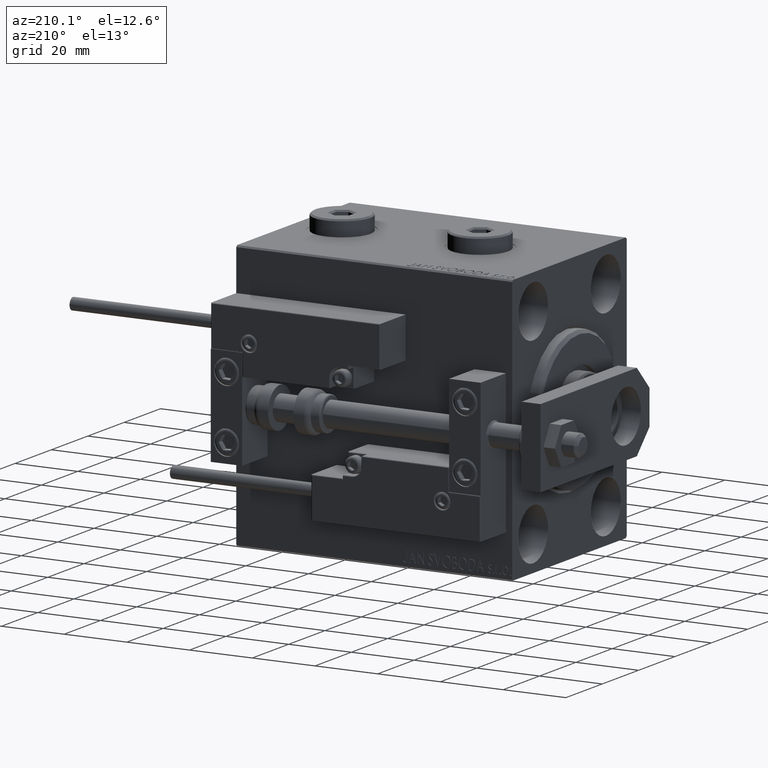
[diagram: clean part render]
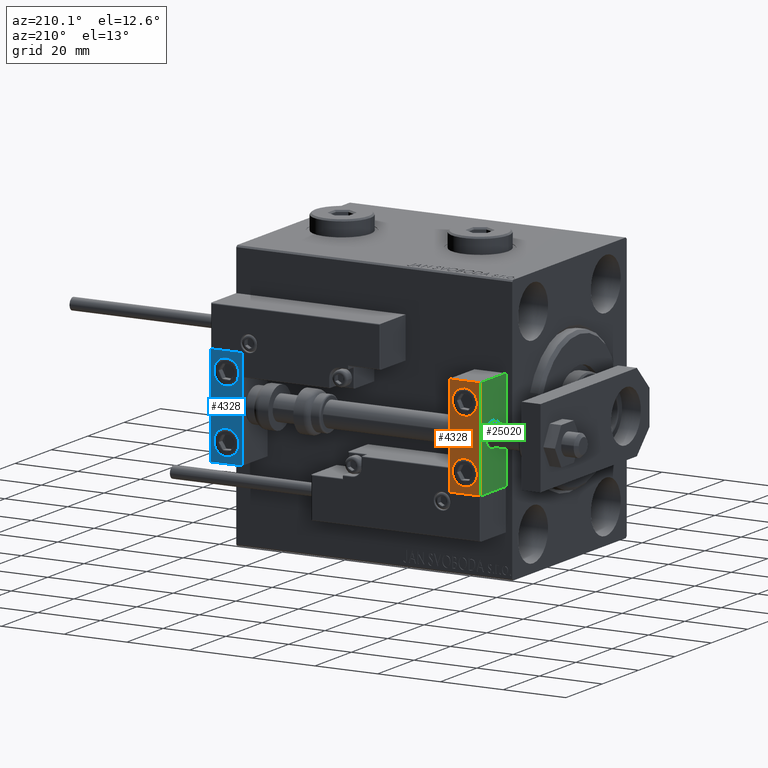
[diagram: same view with three faces highlighted in distinct colors, each labeled with its STEP entity id]
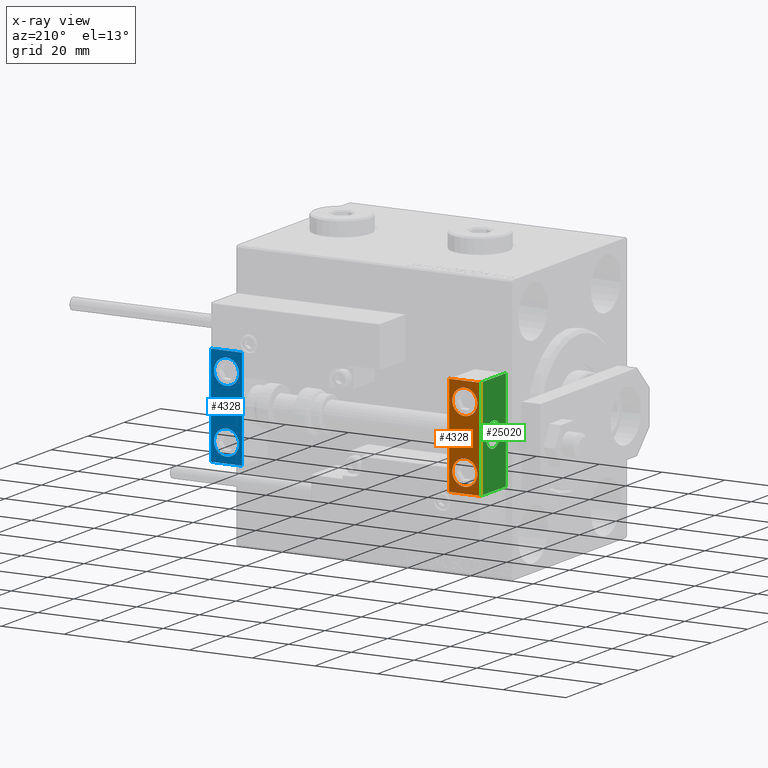
[diagram: x-ray of the same camera — body ghosted, the three highlighted faces saturated]
A machine part, auxiliary view with three faces highlighted in distinct colors.
The next image is the same camera in x-ray (body ghosted, the three faces saturated) — at least one of them is partly hidden behind the body in this view.
Their STEP definitions:

[orange] entity #4328 — the highlighted planar face has unit normal (-0, 1, -0).
#2 = AXIS2_PLACEMENT_3D ( 'NONE', #12083, #15994, #35021 ) ;
#1195 = VERTEX_POINT ( 'NONE', #38281 ) ;
#2573 = CARTESIAN_POINT ( 'NONE',  ( 5.000000000000000888, 7.000000000000000888, 14.00000000000000178 ) ) ;
#2890 = CARTESIAN_POINT ( 'NONE',  ( 10.00000000000000000, 7.000000000000000000, -16.00000000000000711 ) ) ;
#3187 = VERTEX_POINT ( 'NONE', #14986 ) ;
#3600 = ORIENTED_EDGE ( 'NONE', *, *, #50711, .F. ) ;
#3672 = DIRECTION ( 'NONE',  ( 0.000000000000000000, 0.000000000000000000, 1.000000000000000000 ) ) ;
#4328 = ADVANCED_FACE ( 'NONE', ( #43644, #24562, #19631 ), #20395, .T. ) ;
#4830 = VERTEX_POINT ( 'NONE', #35319 ) ;
#4911 = LINE ( 'NONE', #49472, #44082 ) ;
#5228 = EDGE_LOOP ( 'NONE', ( #29482, #14373 ) ) ;
#5525 = EDGE_CURVE ( 'NONE', #42327, #4830, #36883, .T. ) ;
#5714 = CARTESIAN_POINT ( 'NONE',  ( 0.000000000000000000, 7.000000000000000000, 15.99999999999999289 ) ) ;
#5879 = CIRCLE ( 'NONE', #34151, 4.000000000000000888 ) ;
#6436 = VERTEX_POINT ( 'NONE', #2890 ) ;
#7366 = VERTEX_POINT ( 'NONE', #2573 ) ;
#7493 = CIRCLE ( 'NONE', #2, 4.000000000000000000 ) ;
#8776 = DIRECTION ( 'NONE',  ( 0.000000000000000000, 0.000000000000000000, -1.000000000000000000 ) ) ;
#9236 = VERTEX_POINT ( 'NONE', #34119 ) ;
#9445 = CIRCLE ( 'NONE', #38577, 4.000000000000000888 ) ;
#10622 = DIRECTION ( 'NONE',  ( 0.000000000000000000, 0.000000000000000000, 1.000000000000000000 ) ) ;
#10911 = ORIENTED_EDGE ( 'NONE', *, *, #17337, .F. ) ;
#11814 = ORIENTED_EDGE ( 'NONE', *, *, #39276, .F. ) ;
#12083 = CARTESIAN_POINT ( 'NONE',  ( 5.000000000000000888, 7.000000000000000888, 10.00000000000000178 ) ) ;
#14373 = ORIENTED_EDGE ( 'NONE', *, *, #42604, .T. ) ;
#14986 = CARTESIAN_POINT ( 'NONE',  ( 5.000000000000001776, 6.999999999999999112, -14.00000000000000178 ) ) ;
#15994 = DIRECTION ( 'NONE',  ( 1.848892746611746419E-32, -1.000000000000000000, 6.616381192988677562E-17 ) ) ;
#17202 = DIRECTION ( 'NONE',  ( -1.000000000000000000, -0.000000000000000000, -0.000000000000000000 ) ) ;
#17337 = EDGE_CURVE ( 'NONE', #42485, #3187, #5879, .T. ) ;
#19177 = CARTESIAN_POINT ( 'NONE',  ( 5.000000000000000888, 7.000000000000000888, 10.00000000000000178 ) ) ;
#19392 = CIRCLE ( 'NONE', #47728, 4.000000000000000000 ) ;
#19529 = CARTESIAN_POINT ( 'NONE',  ( 5.000000000000000888, 6.999999999999999112, -10.00000000000000178 ) ) ;
#19631 = FACE_BOUND ( 'NONE', #5228, .T. ) ;
#19821 = EDGE_CURVE ( 'NONE', #6436, #4830, #34153, .T. ) ;
#20036 = DIRECTION ( 'NONE',  ( 0.000000000000000000, 1.000000000000000000, -6.065466699219605527E-17 ) ) ;
#20395 = PLANE ( 'NONE',  #30452 ) ;
#20538 = VECTOR ( 'NONE', #8776, 1000.000000000000000 ) ;
#20767 = DIRECTION ( 'NONE',  ( 0.000000000000000000, 0.000000000000000000, -1.000000000000000000 ) ) ;
#22281 = DIRECTION ( 'NONE',  ( 0.000000000000000000, 0.000000000000000000, 1.000000000000000000 ) ) ;
#23539 = CARTESIAN_POINT ( 'NONE',  ( 10.00000000000000000, 7.000000000000000000, 15.99999999999999289 ) ) ;
#24562 = FACE_BOUND ( 'NONE', #48932, .T. ) ;
#25390 = CARTESIAN_POINT ( 'NONE',  ( 0.000000000000000000, 7.000000000000000000, 15.99999999999999289 ) ) ;
#26720 = VECTOR ( 'NONE', #50093, 1000.000000000000000 ) ;
#27456 = DIRECTION ( 'NONE',  ( 0.000000000000000000, -0.000000000000000000, 1.000000000000000000 ) ) ;
#28218 = DIRECTION ( 'NONE',  ( -0.000000000000000000, 1.000000000000000000, 0.000000000000000000 ) ) ;
#29482 = ORIENTED_EDGE ( 'NONE', *, *, #30444, .T. ) ;
#29944 = EDGE_CURVE ( 'NONE', #1195, #6436, #4911, .T. ) ;
#30444 = EDGE_CURVE ( 'NONE', #7366, #9236, #7493, .T. ) ;
#30452 = AXIS2_PLACEMENT_3D ( 'NONE', #23539, #28218, #27456 ) ;
#30586 = ORIENTED_EDGE ( 'NONE', *, *, #5525, .F. ) ;
#32227 = EDGE_LOOP ( 'NONE', ( #30586, #3600, #46593, #38855 ) ) ;
#33022 = VECTOR ( 'NONE', #17202, 1000.000000000000000 ) ;
#34119 = CARTESIAN_POINT ( 'NONE',  ( 5.000000000000001776, 7.000000000000000888, 6.000000000000000888 ) ) ;
#34151 = AXIS2_PLACEMENT_3D ( 'NONE', #38726, #43150, #22281 ) ;
#34153 = LINE ( 'NONE', #50612, #26720 ) ;
#35021 = DIRECTION ( 'NONE',  ( 0.000000000000000000, 0.000000000000000000, 1.000000000000000000 ) ) ;
#35319 = CARTESIAN_POINT ( 'NONE',  ( 0.000000000000000000, 7.000000000000000000, -16.00000000000000711 ) ) ;
#36883 = LINE ( 'NONE', #25390, #20538 ) ;
#38281 = CARTESIAN_POINT ( 'NONE',  ( 10.00000000000000000, 7.000000000000000000, 15.99999999999999289 ) ) ;
#38577 = AXIS2_PLACEMENT_3D ( 'NONE', #19529, #20036, #3672 ) ;
#38726 = CARTESIAN_POINT ( 'NONE',  ( 5.000000000000000888, 6.999999999999999112, -10.00000000000000178 ) ) ;
#38855 = ORIENTED_EDGE ( 'NONE', *, *, #19821, .T. ) ;
#39276 = EDGE_CURVE ( 'NONE', #3187, #42485, #9445, .T. ) ;
#41427 = LINE ( 'NONE', #44844, #33022 ) ;
#42327 = VERTEX_POINT ( 'NONE', #5714 ) ;
#42485 = VERTEX_POINT ( 'NONE', #44755 ) ;
#42604 = EDGE_CURVE ( 'NONE', #9236, #7366, #19392, .T. ) ;
#43150 = DIRECTION ( 'NONE',  ( 0.000000000000000000, 1.000000000000000000, -6.065466699219605527E-17 ) ) ;
#43644 = FACE_OUTER_BOUND ( 'NONE', #32227, .T. ) ;
#44082 = VECTOR ( 'NONE', #20767, 1000.000000000000000 ) ;
#44755 = CARTESIAN_POINT ( 'NONE',  ( 5.000000000000000888, 6.999999999999999112, -6.000000000000000888 ) ) ;
#44844 = CARTESIAN_POINT ( 'NONE',  ( 10.00000000000000000, 7.000000000000000000, 15.99999999999999289 ) ) ;
#46593 = ORIENTED_EDGE ( 'NONE', *, *, #29944, .T. ) ;
#47351 = DIRECTION ( 'NONE',  ( 1.848892746611746419E-32, -1.000000000000000000, 6.616381192988677562E-17 ) ) ;
#47728 = AXIS2_PLACEMENT_3D ( 'NONE', #19177, #47351, #10622 ) ;
#48932 = EDGE_LOOP ( 'NONE', ( #10911, #11814 ) ) ;
#49472 = CARTESIAN_POINT ( 'NONE',  ( 10.00000000000000000, 7.000000000000000000, 15.99999999999999289 ) ) ;
#50093 = DIRECTION ( 'NONE',  ( -1.000000000000000000, -0.000000000000000000, -0.000000000000000000 ) ) ;
#50612 = CARTESIAN_POINT ( 'NONE',  ( 10.00000000000000000, 7.000000000000000000, -16.00000000000000711 ) ) ;
#50711 = EDGE_CURVE ( 'NONE', #1195, #42327, #41427, .T. ) ;

[blue] entity #4328 — the highlighted planar face has unit normal (0, 1, 0).
#2 = AXIS2_PLACEMENT_3D ( 'NONE', #12083, #15994, #35021 ) ;
#1195 = VERTEX_POINT ( 'NONE', #38281 ) ;
#2573 = CARTESIAN_POINT ( 'NONE',  ( 5.000000000000000888, 7.000000000000000888, 14.00000000000000178 ) ) ;
#2890 = CARTESIAN_POINT ( 'NONE',  ( 10.00000000000000000, 7.000000000000000000, -16.00000000000000711 ) ) ;
#3187 = VERTEX_POINT ( 'NONE', #14986 ) ;
#3600 = ORIENTED_EDGE ( 'NONE', *, *, #50711, .F. ) ;
#3672 = DIRECTION ( 'NONE',  ( 0.000000000000000000, 0.000000000000000000, 1.000000000000000000 ) ) ;
#4328 = ADVANCED_FACE ( 'NONE', ( #43644, #24562, #19631 ), #20395, .T. ) ;
#4830 = VERTEX_POINT ( 'NONE', #35319 ) ;
#4911 = LINE ( 'NONE', #49472, #44082 ) ;
#5228 = EDGE_LOOP ( 'NONE', ( #29482, #14373 ) ) ;
#5525 = EDGE_CURVE ( 'NONE', #42327, #4830, #36883, .T. ) ;
#5714 = CARTESIAN_POINT ( 'NONE',  ( 0.000000000000000000, 7.000000000000000000, 15.99999999999999289 ) ) ;
#5879 = CIRCLE ( 'NONE', #34151, 4.000000000000000888 ) ;
#6436 = VERTEX_POINT ( 'NONE', #2890 ) ;
#7366 = VERTEX_POINT ( 'NONE', #2573 ) ;
#7493 = CIRCLE ( 'NONE', #2, 4.000000000000000000 ) ;
#8776 = DIRECTION ( 'NONE',  ( 0.000000000000000000, 0.000000000000000000, -1.000000000000000000 ) ) ;
#9236 = VERTEX_POINT ( 'NONE', #34119 ) ;
#9445 = CIRCLE ( 'NONE', #38577, 4.000000000000000888 ) ;
#10622 = DIRECTION ( 'NONE',  ( 0.000000000000000000, 0.000000000000000000, 1.000000000000000000 ) ) ;
#10911 = ORIENTED_EDGE ( 'NONE', *, *, #17337, .F. ) ;
#11814 = ORIENTED_EDGE ( 'NONE', *, *, #39276, .F. ) ;
#12083 = CARTESIAN_POINT ( 'NONE',  ( 5.000000000000000888, 7.000000000000000888, 10.00000000000000178 ) ) ;
#14373 = ORIENTED_EDGE ( 'NONE', *, *, #42604, .T. ) ;
#14986 = CARTESIAN_POINT ( 'NONE',  ( 5.000000000000001776, 6.999999999999999112, -14.00000000000000178 ) ) ;
#15994 = DIRECTION ( 'NONE',  ( 1.848892746611746419E-32, -1.000000000000000000, 6.616381192988677562E-17 ) ) ;
#17202 = DIRECTION ( 'NONE',  ( -1.000000000000000000, -0.000000000000000000, -0.000000000000000000 ) ) ;
#17337 = EDGE_CURVE ( 'NONE', #42485, #3187, #5879, .T. ) ;
#19177 = CARTESIAN_POINT ( 'NONE',  ( 5.000000000000000888, 7.000000000000000888, 10.00000000000000178 ) ) ;
#19392 = CIRCLE ( 'NONE', #47728, 4.000000000000000000 ) ;
#19529 = CARTESIAN_POINT ( 'NONE',  ( 5.000000000000000888, 6.999999999999999112, -10.00000000000000178 ) ) ;
#19631 = FACE_BOUND ( 'NONE', #5228, .T. ) ;
#19821 = EDGE_CURVE ( 'NONE', #6436, #4830, #34153, .T. ) ;
#20036 = DIRECTION ( 'NONE',  ( 0.000000000000000000, 1.000000000000000000, -6.065466699219605527E-17 ) ) ;
#20395 = PLANE ( 'NONE',  #30452 ) ;
#20538 = VECTOR ( 'NONE', #8776, 1000.000000000000000 ) ;
#20767 = DIRECTION ( 'NONE',  ( 0.000000000000000000, 0.000000000000000000, -1.000000000000000000 ) ) ;
#22281 = DIRECTION ( 'NONE',  ( 0.000000000000000000, 0.000000000000000000, 1.000000000000000000 ) ) ;
#23539 = CARTESIAN_POINT ( 'NONE',  ( 10.00000000000000000, 7.000000000000000000, 15.99999999999999289 ) ) ;
#24562 = FACE_BOUND ( 'NONE', #48932, .T. ) ;
#25390 = CARTESIAN_POINT ( 'NONE',  ( 0.000000000000000000, 7.000000000000000000, 15.99999999999999289 ) ) ;
#26720 = VECTOR ( 'NONE', #50093, 1000.000000000000000 ) ;
#27456 = DIRECTION ( 'NONE',  ( 0.000000000000000000, -0.000000000000000000, 1.000000000000000000 ) ) ;
#28218 = DIRECTION ( 'NONE',  ( -0.000000000000000000, 1.000000000000000000, 0.000000000000000000 ) ) ;
#29482 = ORIENTED_EDGE ( 'NONE', *, *, #30444, .T. ) ;
#29944 = EDGE_CURVE ( 'NONE', #1195, #6436, #4911, .T. ) ;
#30444 = EDGE_CURVE ( 'NONE', #7366, #9236, #7493, .T. ) ;
#30452 = AXIS2_PLACEMENT_3D ( 'NONE', #23539, #28218, #27456 ) ;
#30586 = ORIENTED_EDGE ( 'NONE', *, *, #5525, .F. ) ;
#32227 = EDGE_LOOP ( 'NONE', ( #30586, #3600, #46593, #38855 ) ) ;
#33022 = VECTOR ( 'NONE', #17202, 1000.000000000000000 ) ;
#34119 = CARTESIAN_POINT ( 'NONE',  ( 5.000000000000001776, 7.000000000000000888, 6.000000000000000888 ) ) ;
#34151 = AXIS2_PLACEMENT_3D ( 'NONE', #38726, #43150, #22281 ) ;
#34153 = LINE ( 'NONE', #50612, #26720 ) ;
#35021 = DIRECTION ( 'NONE',  ( 0.000000000000000000, 0.000000000000000000, 1.000000000000000000 ) ) ;
#35319 = CARTESIAN_POINT ( 'NONE',  ( 0.000000000000000000, 7.000000000000000000, -16.00000000000000711 ) ) ;
#36883 = LINE ( 'NONE', #25390, #20538 ) ;
#38281 = CARTESIAN_POINT ( 'NONE',  ( 10.00000000000000000, 7.000000000000000000, 15.99999999999999289 ) ) ;
#38577 = AXIS2_PLACEMENT_3D ( 'NONE', #19529, #20036, #3672 ) ;
#38726 = CARTESIAN_POINT ( 'NONE',  ( 5.000000000000000888, 6.999999999999999112, -10.00000000000000178 ) ) ;
#38855 = ORIENTED_EDGE ( 'NONE', *, *, #19821, .T. ) ;
#39276 = EDGE_CURVE ( 'NONE', #3187, #42485, #9445, .T. ) ;
#41427 = LINE ( 'NONE', #44844, #33022 ) ;
#42327 = VERTEX_POINT ( 'NONE', #5714 ) ;
#42485 = VERTEX_POINT ( 'NONE', #44755 ) ;
#42604 = EDGE_CURVE ( 'NONE', #9236, #7366, #19392, .T. ) ;
#43150 = DIRECTION ( 'NONE',  ( 0.000000000000000000, 1.000000000000000000, -6.065466699219605527E-17 ) ) ;
#43644 = FACE_OUTER_BOUND ( 'NONE', #32227, .T. ) ;
#44082 = VECTOR ( 'NONE', #20767, 1000.000000000000000 ) ;
#44755 = CARTESIAN_POINT ( 'NONE',  ( 5.000000000000000888, 6.999999999999999112, -6.000000000000000888 ) ) ;
#44844 = CARTESIAN_POINT ( 'NONE',  ( 10.00000000000000000, 7.000000000000000000, 15.99999999999999289 ) ) ;
#46593 = ORIENTED_EDGE ( 'NONE', *, *, #29944, .T. ) ;
#47351 = DIRECTION ( 'NONE',  ( 1.848892746611746419E-32, -1.000000000000000000, 6.616381192988677562E-17 ) ) ;
#47728 = AXIS2_PLACEMENT_3D ( 'NONE', #19177, #47351, #10622 ) ;
#48932 = EDGE_LOOP ( 'NONE', ( #10911, #11814 ) ) ;
#49472 = CARTESIAN_POINT ( 'NONE',  ( 10.00000000000000000, 7.000000000000000000, 15.99999999999999289 ) ) ;
#50093 = DIRECTION ( 'NONE',  ( -1.000000000000000000, -0.000000000000000000, -0.000000000000000000 ) ) ;
#50612 = CARTESIAN_POINT ( 'NONE',  ( 10.00000000000000000, 7.000000000000000000, -16.00000000000000711 ) ) ;
#50711 = EDGE_CURVE ( 'NONE', #1195, #42327, #41427, .T. ) ;

[green] entity #25020 — the highlighted planar face has unit normal (1, 0, -0).
#1195 = VERTEX_POINT ( 'NONE', #38281 ) ;
#2513 = ORIENTED_EDGE ( 'NONE', *, *, #29944, .F. ) ;
#2890 = CARTESIAN_POINT ( 'NONE',  ( 10.00000000000000000, 7.000000000000000000, -16.00000000000000711 ) ) ;
#4911 = LINE ( 'NONE', #49472, #44082 ) ;
#6436 = VERTEX_POINT ( 'NONE', #2890 ) ;
#6563 = VERTEX_POINT ( 'NONE', #47938 ) ;
#6940 = CIRCLE ( 'NONE', #46862, 4.000000000000000000 ) ;
#7358 = CARTESIAN_POINT ( 'NONE',  ( 10.00000000000000000, 7.000000000000000000, -16.00000000000000711 ) ) ;
#8529 = CARTESIAN_POINT ( 'NONE',  ( 10.00000000000000000, 0.000000000000000000, 0.000000000000000000 ) ) ;
#9133 = DIRECTION ( 'NONE',  ( 0.000000000000000000, 0.000000000000000000, -1.000000000000000000 ) ) ;
#11263 = DIRECTION ( 'NONE',  ( 0.000000000000000000, -1.000000000000000000, 0.000000000000000000 ) ) ;
#11273 = CARTESIAN_POINT ( 'NONE',  ( 10.00000000000000000, 7.000000000000000000, 15.99999999999999289 ) ) ;
#12137 = DIRECTION ( 'NONE',  ( 0.000000000000000000, 0.000000000000000000, 1.000000000000000000 ) ) ;
#12934 = DIRECTION ( 'NONE',  ( -1.000000000000000000, 0.000000000000000000, 0.000000000000000000 ) ) ;
#14697 = EDGE_CURVE ( 'NONE', #44096, #33709, #40657, .T. ) ;
#14915 = LINE ( 'NONE', #7358, #41987 ) ;
#14921 = ORIENTED_EDGE ( 'NONE', *, *, #22855, .T. ) ;
#14926 = LINE ( 'NONE', #11273, #28714 ) ;
#15471 = ORIENTED_EDGE ( 'NONE', *, *, #46381, .T. ) ;
#15490 = CARTESIAN_POINT ( 'NONE',  ( 10.00000000000000000, 4.898587196589412829E-16, -4.000000000000000000 ) ) ;
#15790 = DIRECTION ( 'NONE',  ( -1.000000000000000000, 0.000000000000000000, 0.000000000000000000 ) ) ;
#20319 = CARTESIAN_POINT ( 'NONE',  ( 10.00000000000000000, -7.000000000000000000, 15.99999999999999289 ) ) ;
#20468 = PLANE ( 'NONE',  #34296 ) ;
#20767 = DIRECTION ( 'NONE',  ( 0.000000000000000000, 0.000000000000000000, -1.000000000000000000 ) ) ;
#20981 = DIRECTION ( 'NONE',  ( 0.000000000000000000, 0.000000000000000000, 1.000000000000000000 ) ) ;
#22855 = EDGE_CURVE ( 'NONE', #45978, #6563, #6940, .T. ) ;
#23470 = DIRECTION ( 'NONE',  ( 0.000000000000000000, -1.000000000000000000, 0.000000000000000000 ) ) ;
#25020 = ADVANCED_FACE ( 'NONE', ( #44230, #40564 ), #20468, .F. ) ;
#25147 = CARTESIAN_POINT ( 'NONE',  ( 10.00000000000000000, 0.000000000000000000, 0.000000000000000000 ) ) ;
#27089 = EDGE_LOOP ( 'NONE', ( #37721, #39778, #2513, #15471 ) ) ;
#28648 = CARTESIAN_POINT ( 'NONE',  ( 10.00000000000000000, -7.000000000000000000, 15.99999999999999289 ) ) ;
#28714 = VECTOR ( 'NONE', #23470, 1000.000000000000000 ) ;
#29944 = EDGE_CURVE ( 'NONE', #1195, #6436, #4911, .T. ) ;
#30964 = EDGE_CURVE ( 'NONE', #6563, #45978, #31581, .T. ) ;
#31508 = VECTOR ( 'NONE', #9133, 1000.000000000000000 ) ;
#31581 = CIRCLE ( 'NONE', #39098, 4.000000000000000000 ) ;
#32460 = DIRECTION ( 'NONE',  ( -0.000000000000000000, 0.000000000000000000, 1.000000000000000000 ) ) ;
#33709 = VERTEX_POINT ( 'NONE', #34669 ) ;
#34296 = AXIS2_PLACEMENT_3D ( 'NONE', #8529, #45265, #32460 ) ;
#34669 = CARTESIAN_POINT ( 'NONE',  ( 10.00000000000000000, -7.000000000000000000, -16.00000000000000711 ) ) ;
#37433 = EDGE_LOOP ( 'NONE', ( #41329, #14921 ) ) ;
#37721 = ORIENTED_EDGE ( 'NONE', *, *, #14697, .T. ) ;
#38281 = CARTESIAN_POINT ( 'NONE',  ( 10.00000000000000000, 7.000000000000000000, 15.99999999999999289 ) ) ;
#39098 = AXIS2_PLACEMENT_3D ( 'NONE', #25147, #12934, #20981 ) ;
#39778 = ORIENTED_EDGE ( 'NONE', *, *, #45484, .F. ) ;
#40564 = FACE_OUTER_BOUND ( 'NONE', #27089, .T. ) ;
#40657 = LINE ( 'NONE', #28648, #31508 ) ;
#41329 = ORIENTED_EDGE ( 'NONE', *, *, #30964, .T. ) ;
#41987 = VECTOR ( 'NONE', #11263, 1000.000000000000000 ) ;
#44082 = VECTOR ( 'NONE', #20767, 1000.000000000000000 ) ;
#44096 = VERTEX_POINT ( 'NONE', #20319 ) ;
#44230 = FACE_BOUND ( 'NONE', #37433, .T. ) ;
#45265 = DIRECTION ( 'NONE',  ( -1.000000000000000000, 0.000000000000000000, -0.000000000000000000 ) ) ;
#45484 = EDGE_CURVE ( 'NONE', #6436, #33709, #14915, .T. ) ;
#45978 = VERTEX_POINT ( 'NONE', #15490 ) ;
#46381 = EDGE_CURVE ( 'NONE', #1195, #44096, #14926, .T. ) ;
#46862 = AXIS2_PLACEMENT_3D ( 'NONE', #51507, #15790, #12137 ) ;
#47938 = CARTESIAN_POINT ( 'NONE',  ( 10.00000000000000000, 0.000000000000000000, 4.000000000000000000 ) ) ;
#49472 = CARTESIAN_POINT ( 'NONE',  ( 10.00000000000000000, 7.000000000000000000, 15.99999999999999289 ) ) ;
#51507 = CARTESIAN_POINT ( 'NONE',  ( 10.00000000000000000, 0.000000000000000000, 0.000000000000000000 ) ) ;